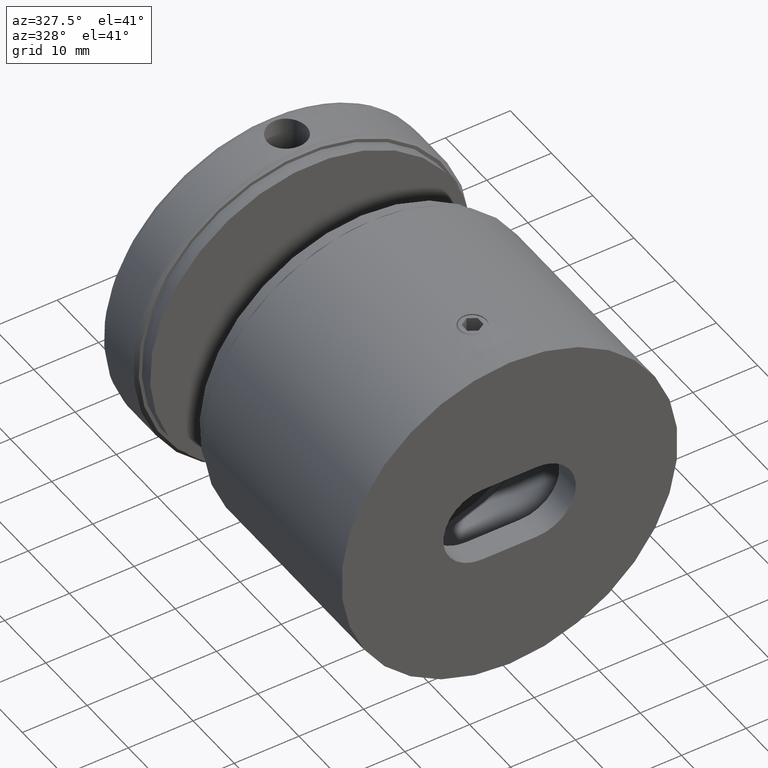
[diagram: clean part render]
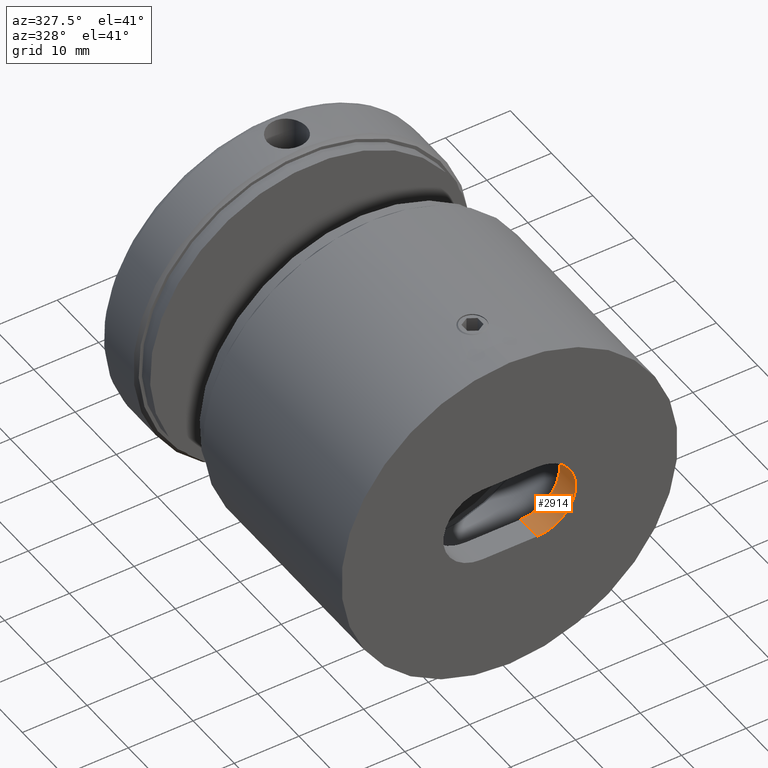
[diagram: same view with one face highlighted and labeled with its STEP entity id]
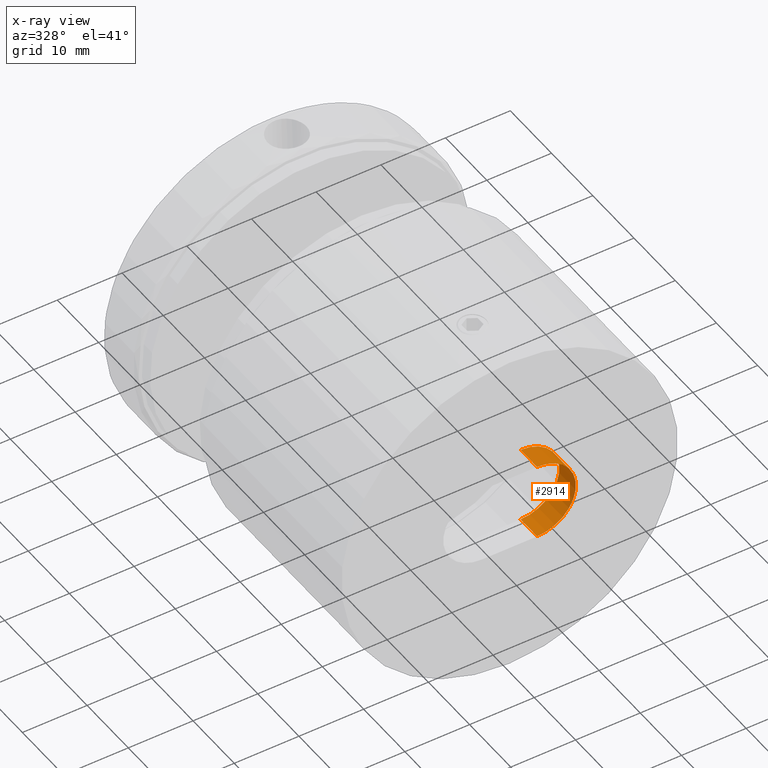
[diagram: x-ray of the same camera — body ghosted, the highlighted face saturated]
A machine part, auxiliary view. The second image highlights one B-rep face of the part: STEP entity #2914.
The next image is the same camera in x-ray: the body ghosted, the highlighted face saturated — about 0% of this face is hidden behind the body in this view.
In plain terms, the highlighted cylindrical surface (partial cylindrical patch) has radius 6 mm, axis along (0, 1, 0).
Its self-contained STEP definition (entity closure, byte-faithful):
#41 = CARTESIAN_POINT ( 'NONE',  ( 4.250000000000000000, 4.000000000000000000, 0.0000000000000000000 ) ) ;
#83 = LINE ( 'NONE', #21091, #4099 ) ;
#86 = CIRCLE ( 'NONE', #4628, 6.000000000000000000 ) ;
#381 = CYLINDRICAL_SURFACE ( 'NONE', #3711, 6.000000000000000000 ) ;
#397 = DIRECTION ( 'NONE',  ( -0.0000000000000000000, 1.000000000000000000, -0.0000000000000000000 ) ) ;
#1393 = CARTESIAN_POINT ( 'NONE',  ( 4.250000000000000000, 0.0000000000000000000, 6.000000000000000000 ) ) ;
#1896 = DIRECTION ( 'NONE',  ( 0.0000000000000000000, 0.0000000000000000000, 1.000000000000000000 ) ) ;
#2914 = ADVANCED_FACE ( 'NONE', ( #15500 ), #381, .F. ) ;
#3247 = EDGE_CURVE ( 'NONE', #15650, #7584, #3351, .T. ) ;
#3351 = CIRCLE ( 'NONE', #8779, 6.000000000000000000 ) ;
#3711 = AXIS2_PLACEMENT_3D ( 'NONE', #3957, #21033, #17835 ) ;
#3774 = EDGE_LOOP ( 'NONE', ( #15300, #11020, #6214, #12694 ) ) ;
#3957 = CARTESIAN_POINT ( 'NONE',  ( 4.250000000000000000, 0.0000000000000000000, 0.0000000000000000000 ) ) ;
#4099 = VECTOR ( 'NONE', #397, 1000.000000000000000 ) ;
#4628 = AXIS2_PLACEMENT_3D ( 'NONE', #21841, #8028, #13388 ) ;
#4877 = DIRECTION ( 'NONE',  ( -0.0000000000000000000, 1.000000000000000000, -0.0000000000000000000 ) ) ;
#5286 = EDGE_CURVE ( 'NONE', #17028, #7584, #83, .T. ) ;
#6035 = CARTESIAN_POINT ( 'NONE',  ( 4.250000000000000000, 4.000000000000000000, 6.000000000000000000 ) ) ;
#6214 = ORIENTED_EDGE ( 'NONE', *, *, #6851, .F. ) ;
#6851 = EDGE_CURVE ( 'NONE', #14060, #17028, #86, .T. ) ;
#7584 = VERTEX_POINT ( 'NONE', #19468 ) ;
#8028 = DIRECTION ( 'NONE',  ( 0.0000000000000000000, 1.000000000000000000, 0.0000000000000000000 ) ) ;
#8374 = CARTESIAN_POINT ( 'NONE',  ( 4.250000000000000000, 0.0000000000000000000, 6.000000000000000000 ) ) ;
#8779 = AXIS2_PLACEMENT_3D ( 'NONE', #41, #13994, #1896 ) ;
#10672 = LINE ( 'NONE', #1393, #13935 ) ;
#11020 = ORIENTED_EDGE ( 'NONE', *, *, #5286, .F. ) ;
#12694 = ORIENTED_EDGE ( 'NONE', *, *, #18140, .T. ) ;
#13388 = DIRECTION ( 'NONE',  ( 0.0000000000000000000, 0.0000000000000000000, 1.000000000000000000 ) ) ;
#13935 = VECTOR ( 'NONE', #4877, 1000.000000000000000 ) ;
#13994 = DIRECTION ( 'NONE',  ( 0.0000000000000000000, 1.000000000000000000, 0.0000000000000000000 ) ) ;
#14060 = VERTEX_POINT ( 'NONE', #8374 ) ;
#15300 = ORIENTED_EDGE ( 'NONE', *, *, #3247, .T. ) ;
#15472 = CARTESIAN_POINT ( 'NONE',  ( 4.250000000000000000, 0.0000000000000000000, -6.000000000000000000 ) ) ;
#15500 = FACE_OUTER_BOUND ( 'NONE', #3774, .T. ) ;
#15650 = VERTEX_POINT ( 'NONE', #6035 ) ;
#17028 = VERTEX_POINT ( 'NONE', #15472 ) ;
#17835 = DIRECTION ( 'NONE',  ( 0.0000000000000000000, 0.0000000000000000000, 1.000000000000000000 ) ) ;
#18140 = EDGE_CURVE ( 'NONE', #14060, #15650, #10672, .T. ) ;
#19468 = CARTESIAN_POINT ( 'NONE',  ( 4.250000000000000000, 4.000000000000000000, -6.000000000000000000 ) ) ;
#21033 = DIRECTION ( 'NONE',  ( -0.0000000000000000000, 1.000000000000000000, -0.0000000000000000000 ) ) ;
#21091 = CARTESIAN_POINT ( 'NONE',  ( 4.250000000000000000, 0.0000000000000000000, -6.000000000000000000 ) ) ;
#21841 = CARTESIAN_POINT ( 'NONE',  ( 4.250000000000000000, 0.0000000000000000000, 0.0000000000000000000 ) ) ;